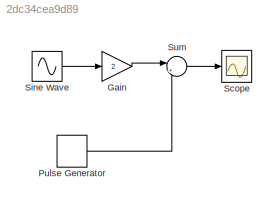
MODEL slx_2dc34cea9d89
KIND model
CONFIG AbsTol = auto
CONFIG EnableMultiTasking = off
CONFIG FixedStep = auto
CONFIG MaxStep = auto
CONFIG MinStep = auto
CONFIG RelTol = 1e-3
CONFIG SampleTimeConstraint = Unconstrained
CONFIG SolverName = VariableStepAuto
CONFIG StartTime = 0.0
CONFIG StopTime = 10.0
BLOCK [Gain] Gain
  Gain = 2
BLOCK [DiscretePulseGenerator] Pulse Generator
  Amplitude = -1
  Period = 0.5
  PulseType = Time based
  PulseWidth = 50
BLOCK [Scope] Scope
  Floating = off
  NumInputPorts = 1
  ScopeSpecificationString = Simulink.scopes.TimeScopeBlockCfg('CurrentConfiguration', extmgr.ConfigurationSet(extmgr.Configuration('Core','General UI',true,'FigureColor',[1 1 1]),extmgr.Configuration('Core','Source UI',true),extmgr.Configuration('Sources','WiredSimulink',true),extmgr.Configuration('Visuals','Time Domain',true,'SerializedDisplays',{struct('MinYLimReal','-3.62368','MaxYLimReal','2.61462','YLabelReal','','MinYL...<+1596ch>
BLOCK [Sin] Sine Wave
  SampleTime = 0
BLOCK [Sum] Sum
  Inputs = |++
LINE Gain:1 -> Sum:1
LINE Pulse Generator:1 -> Sum:2
LINE Sine Wave:1 -> Gain:1
LINE Sum:1 -> Scope:1
